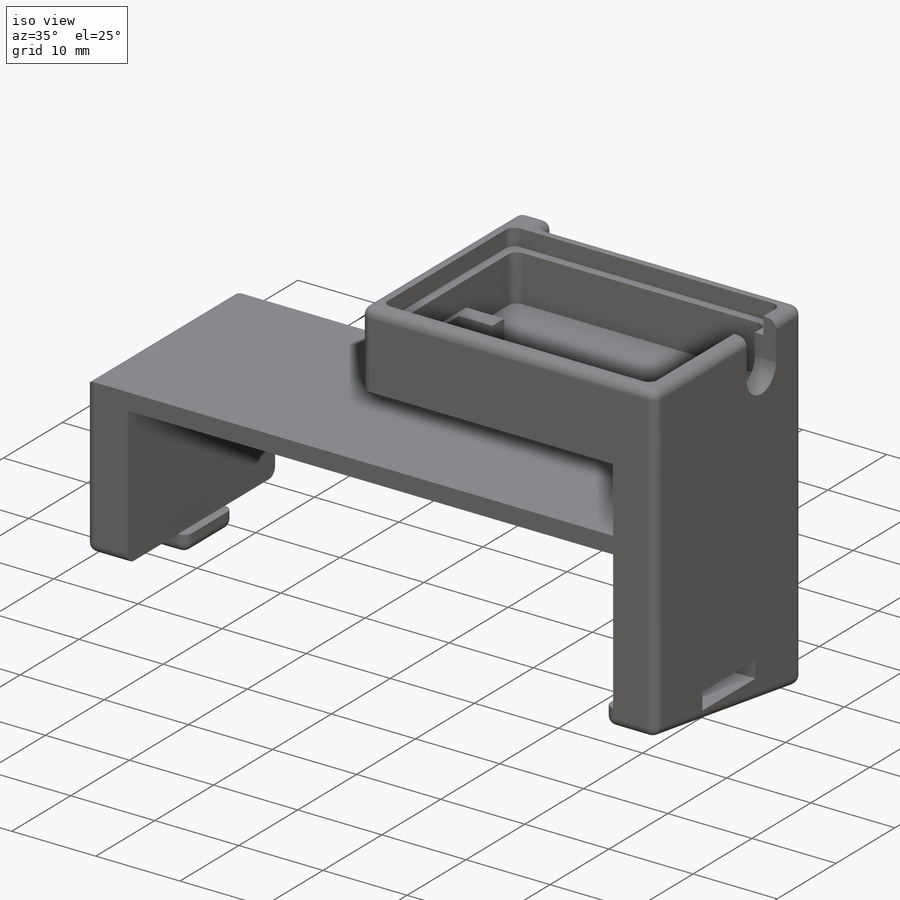
[diagram: iso view]
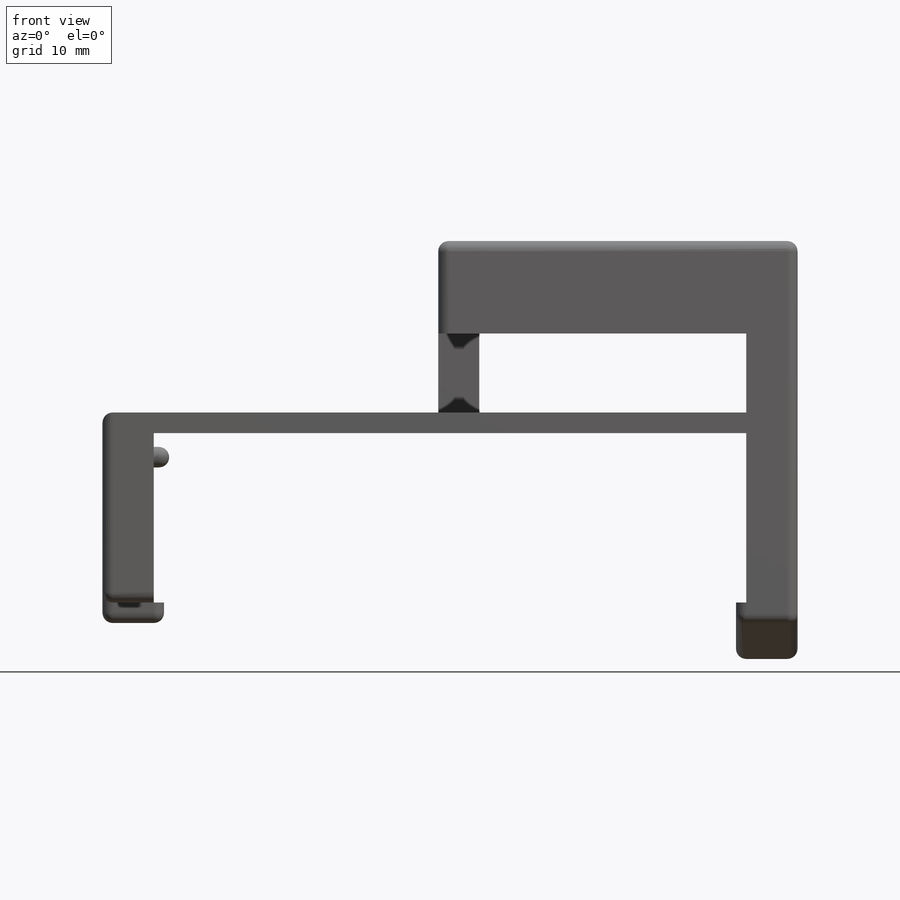
[diagram: front view]
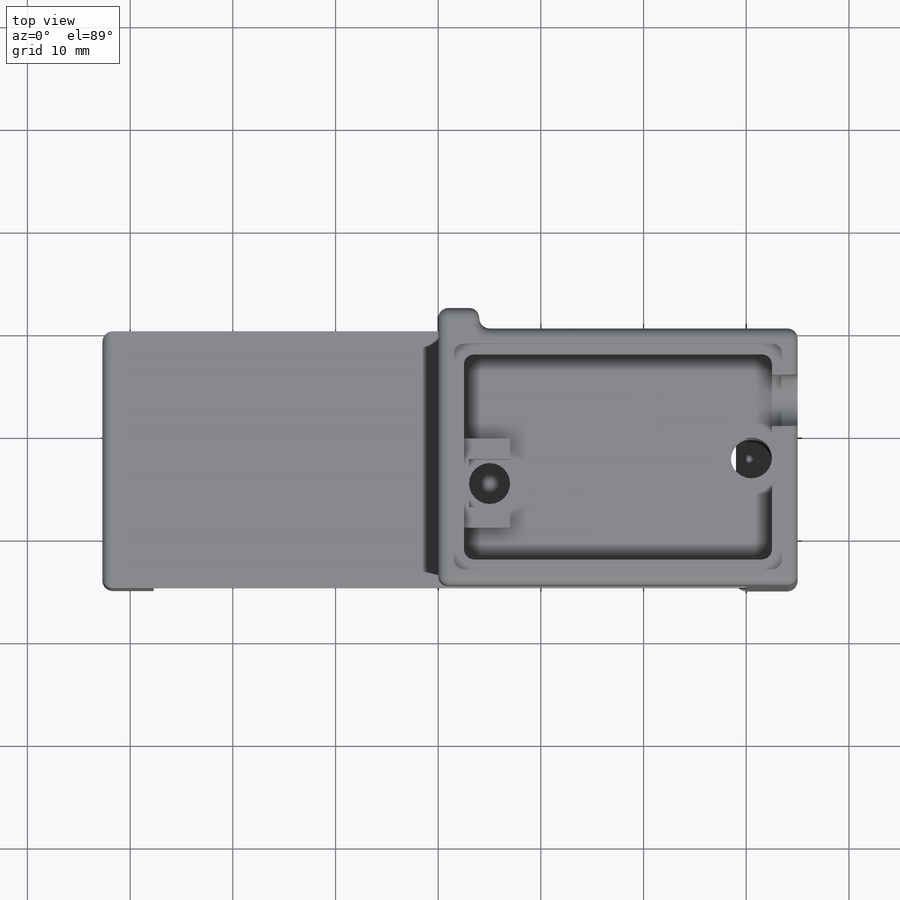
[diagram: top view]
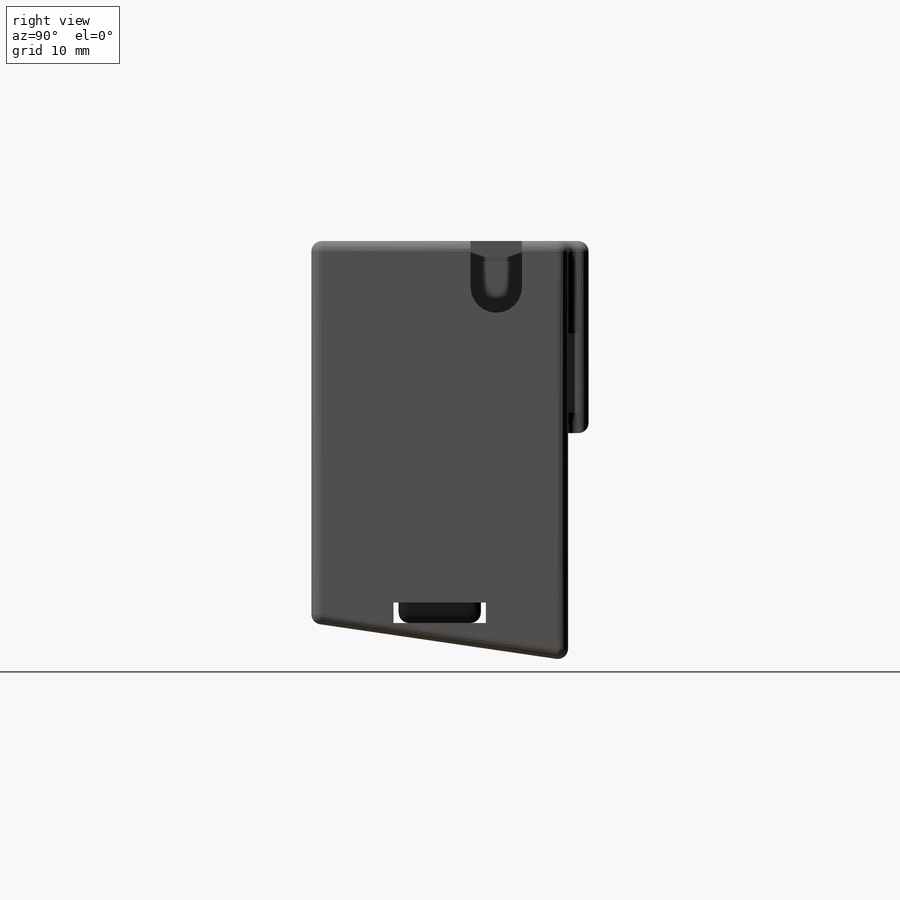
[diagram: right view]
SOLIDWORKS PART (.sldprt)
format: sldprt  version: not decoded by parser v0  size: 817,152 bytes
history: native  units: mm
features: extrude x184, sketch x13, cut_extrude x6, fillet x3, material x1 (+13 scaffold rows collapsed)
feature tree (220):
  scaffold x13  (default folders/planes/origin — collapsed)
  material  "Material <not specified>"
  sketch  "Sketch1"  dims[D1=7.7mm D2=30.0mm D3=35.0mm D4=67.7mm D5=9.0mm D6=18.5mm]
  extrude  "Boss-Extrude1"  Depth=25mm
  sketch  "Sketch2"  dims[D1=57.7mm D2=5.0mm D3=16.5mm]
  cut_extrude  "Cut-Extrude1"  [1 undecoded]
  sketch  "Sketch3"  dims[D1=2.5mm D2=2.5mm D3=2.5mm D4=2.5mm]
  cut_extrude  "Cut-Extrude2"  Depth=7.5mm
  sketch  "Sketch4"  dims[D1=4.0mm D2=0.5mm]
  cut_extrude  "Cut-Extrude3"  [1 undecoded]
  sketch  "Sketch5"  dims[D1=4.0mm D2=25.0mm D3=15.0mm]
  cut_extrude  "Cut-Extrude4"  [1 undecoded]
  sketch  "Sketch6"  dims[D1=8.0mm D2=6.0mm]
  extrude  "Boss-Extrude2"  Depth=2mm
  sketch  "Sketch7"  dims[D2=4.0mm D1=0.0mm flange_len_value=0.0]
  extrude  "Associativity_IDs"  Depth=0 flange_len_value=0
  extrude  "Associativity_IDs"  Depth=0 flange_len_value=0
  extrude  "Associativity_IDs"  Depth=0 flange_len_value=0
  extrude  "Associativity_IDs"  Depth=0 flange_len_value=0
  extrude  "Associativity_IDs"  Depth=0 flange_len_value=0
  extrude  "Associativity_IDs"  Depth=0 flange_len_value=0
  extrude  "Associativity_IDs"  Depth=0 flange_len_value=0
  extrude  "Associativity_IDs"  Depth=0 flange_len_value=0
  extrude  "Associativity_IDs"  Depth=0 flange_len_value=0
  extrude  "Associativity_IDs"  Depth=0 flange_len_value=0
  extrude  "Associativity_IDs"  Depth=0 flange_len_value=0
  extrude  "Associativity_IDs"  Depth=0 flange_len_value=0
  extrude  "Associativity_IDs"  Depth=0 flange_len_value=0
  extrude  "Associativity_IDs"  Depth=0 flange_len_value=0
  extrude  "Associativity_IDs"  Depth=0 flange_len_value=0
  extrude  "Associativity_IDs"  Depth=0 flange_len_value=0
  extrude  "Associativity_IDs"  Depth=0 flange_len_value=0
  extrude  "Associativity_IDs"  Depth=0 flange_len_value=0
  extrude  "Associativity_IDs"  Depth=0 flange_len_value=0
  extrude  "Associativity_IDs"  Depth=0 flange_len_value=0
  extrude  "Associativity_IDs"  Depth=0 flange_len_value=0
  extrude  "Associativity_IDs"  Depth=0 flange_len_value=0
  extrude  "Associativity_IDs"  Depth=0 flange_len_value=0
  extrude  "Associativity_IDs"  Depth=0 flange_len_value=0
  extrude  "Associativity_IDs"  Depth=0 flange_len_value=0
  extrude  "Associativity_IDs"  Depth=0 flange_len_value=0
  extrude  "Associativity_IDs"  Depth=0 flange_len_value=0
  extrude  "Associativity_IDs"  Depth=0 flange_len_value=0
  extrude  "Associativity_IDs"  Depth=0 flange_len_value=0
  extrude  "Associativity_IDs"  Depth=0 flange_len_value=0
  extrude  "Associativity_IDs"  Depth=0 flange_len_value=0
  extrude  "Associativity_IDs"  Depth=0 flange_len_value=0
  extrude  "Associativity_IDs"  Depth=0 flange_len_value=0
  extrude  "Associativity_IDs"  Depth=0 flange_len_value=0
  extrude  "Associativity_IDs"  Depth=0 flange_len_value=0
  extrude  "Associativity_IDs"  Depth=0 flange_len_value=0
  extrude  "Associativity_IDs"  Depth=0 flange_len_value=0
  extrude  "Associativity_IDs"  Depth=0 flange_len_value=0
  extrude  "Associativity_IDs"  Depth=0 flange_len_value=0
  extrude  "Associativity_IDs"  Depth=0 flange_len_value=0
  extrude  "Associativity_IDs"  Depth=0 flange_len_value=0
  sketch  "Sketch8"  dims[c1.D1=25.0mm c2.D1=~8.330537deg c2.D2=~3.660714mm c3.D1=3.66mm c3.D2=25.0mm c4.D2=~8.328934deg]
  extrude  "Boss-Extrude4"  [1 undecoded]
  extrude  "Associativity_IDs"  Depth=0 flange_len_value=0
  extrude  "Associativity_IDs"  Depth=0 flange_len_value=0
  sketch  "Sketch9"  dims[D1=1.0mm D2=1.0mm D3=1.0mm D4=1.0mm]
  cut_extrude  "Cut-Extrude5"  Depth=2mm
  fillet  "Fillet1"  Radius=1mm
  sketch  "Sketch10"  dims[D2=2.0mm D3=2.0mm D1=3.0mm D4=2.35mm]
  extrude  "Boss-Extrude5"  Depth=1.5mm
  fillet  "Fillet3"  Radius=1mm
  extrude  "Associativity_IDs"  Depth=0 flange_len_value=0
  extrude  "Associativity_IDs"  Depth=0 flange_len_value=0
  extrude  "Associativity_IDs"  Depth=0 flange_len_value=0
  extrude  "Associativity_IDs"  Depth=0 flange_len_value=0
  extrude  "Associativity_IDs"  Depth=0 flange_len_value=0
  extrude  "Associativity_IDs"  Depth=0 flange_len_value=0
  extrude  "Associativity_IDs"  Depth=0 flange_len_value=0
  extrude  "Associativity_IDs"  Depth=0 flange_len_value=0
  extrude  "Associativity_IDs"  Depth=0 flange_len_value=0
  extrude  "Associativity_IDs"  Depth=0 flange_len_value=0
  extrude  "Associativity_IDs"  Depth=0 flange_len_value=0
  extrude  "Associativity_IDs"  Depth=0 flange_len_value=0
  extrude  "Associativity_IDs"  Depth=0 flange_len_value=0
  extrude  "Associativity_IDs"  Depth=0 flange_len_value=0
  extrude  "Associativity_IDs"  Depth=0 flange_len_value=0
  extrude  "Associativity_IDs"  Depth=0 flange_len_value=0
  extrude  "Associativity_IDs"  Depth=0 flange_len_value=0
  extrude  "Associativity_IDs"  Depth=0 flange_len_value=0
  extrude  "Associativity_IDs"  Depth=0 flange_len_value=0
  extrude  "Associativity_IDs"  Depth=0 flange_len_value=0
  extrude  "Associativity_IDs"  Depth=0 flange_len_value=0
  extrude  "Associativity_IDs"  Depth=0 flange_len_value=0
  extrude  "Associativity_IDs"  Depth=0 flange_len_value=0
  extrude  "Associativity_IDs"  Depth=0 flange_len_value=0
  extrude  "Associativity_IDs"  Depth=0 flange_len_value=0
  extrude  "Associativity_IDs"  Depth=0 flange_len_value=0
  extrude  "Associativity_IDs"  Depth=0 flange_len_value=0
  extrude  "Associativity_IDs"  Depth=0 flange_len_value=0
  extrude  "Associativity_IDs"  Depth=0 flange_len_value=0
  extrude  "Associativity_IDs"  Depth=0 flange_len_value=0
  extrude  "Associativity_IDs"  Depth=0 flange_len_value=0
  extrude  "Associativity_IDs"  Depth=0 flange_len_value=0
  extrude  "Associativity_IDs"  Depth=0 flange_len_value=0
  extrude  "Associativity_IDs"  Depth=0 flange_len_value=0
  extrude  "Associativity_IDs"  Depth=0 flange_len_value=0
  extrude  "Associativity_IDs"  Depth=0 flange_len_value=0
  extrude  "Associativity_IDs"  Depth=0 flange_len_value=0
  extrude  "Associativity_IDs"  Depth=0 flange_len_value=0
  extrude  "Associativity_IDs"  Depth=0 flange_len_value=0
  extrude  "Associativity_IDs"  Depth=0 flange_len_value=0
  extrude  "Associativity_IDs"  Depth=0 flange_len_value=0
  extrude  "Associativity_IDs"  Depth=0 flange_len_value=0
  extrude  "Associativity_IDs"  Depth=0 flange_len_value=0
  extrude  "Associativity_IDs"  Depth=0 flange_len_value=0
  extrude  "Associativity_IDs"  Depth=0 flange_len_value=0
  extrude  "Associativity_IDs"  Depth=0 flange_len_value=0
  extrude  "Associativity_IDs"  Depth=0 flange_len_value=0
  extrude  "Associativity_IDs"  Depth=0 flange_len_value=0
  extrude  "Associativity_IDs"  Depth=0 flange_len_value=0
  extrude  "Associativity_IDs"  Depth=0 flange_len_value=0
  extrude  "Associativity_IDs"  Depth=0 flange_len_value=0
  extrude  "Associativity_IDs"  Depth=0 flange_len_value=0
  extrude  "Associativity_IDs"  Depth=0 flange_len_value=0
  extrude  "Associativity_IDs"  Depth=0 flange_len_value=0
  extrude  "Associativity_IDs"  Depth=0 flange_len_value=0
  extrude  "Associativity_IDs"  Depth=0 flange_len_value=0
  extrude  "Associativity_IDs"  Depth=0 flange_len_value=0
  extrude  "Associativity_IDs"  Depth=0 flange_len_value=0
  extrude  "Associativity_IDs"  Depth=0 flange_len_value=0
  extrude  "Associativity_IDs"  Depth=0 flange_len_value=0
  extrude  "Associativity_IDs"  Depth=0 flange_len_value=0
  extrude  "Associativity_IDs"  Depth=0 flange_len_value=0
  extrude  "Associativity_IDs"  Depth=0 flange_len_value=0
  extrude  "Associativity_IDs"  Depth=0 flange_len_value=0
  extrude  "Associativity_IDs"  Depth=0 flange_len_value=0
  extrude  "Boss-Extrude6"  Depth=2mm
  fillet  "Fillet4"  Radius=1mm
  extrude  "Associativity_IDs"  Depth=0 flange_len_value=0
  extrude  "Associativity_IDs"  Depth=0 flange_len_value=0
  extrude  "Associativity_IDs"  Depth=0 flange_len_value=0
  extrude  "Associativity_IDs"  Depth=0 flange_len_value=0
  extrude  "Associativity_IDs"  Depth=0 flange_len_value=0
  extrude  "Associativity_IDs"  Depth=0 flange_len_value=0
  extrude  "Associativity_IDs"  Depth=0 flange_len_value=0
  extrude  "Associativity_IDs"  Depth=0 flange_len_value=0
  extrude  "Associativity_IDs"  Depth=0 flange_len_value=0
  extrude  "Associativity_IDs"  Depth=0 flange_len_value=0
  extrude  "Associativity_IDs"  Depth=0 flange_len_value=0
  extrude  "Associativity_IDs"  Depth=0 flange_len_value=0
  extrude  "Associativity_IDs"  Depth=0 flange_len_value=0
  extrude  "Associativity_IDs"  Depth=0 flange_len_value=0
  extrude  "Associativity_IDs"  Depth=0 flange_len_value=0
  extrude  "Associativity_IDs"  Depth=0 flange_len_value=0
  extrude  "Associativity_IDs"  Depth=0 flange_len_value=0
  extrude  "Associativity_IDs"  Depth=0 flange_len_value=0
  extrude  "Associativity_IDs"  Depth=0 flange_len_value=0
  extrude  "Associativity_IDs"  Depth=0 flange_len_value=0
  extrude  "Associativity_IDs"  Depth=0 flange_len_value=0
  extrude  "Associativity_IDs"  Depth=0 flange_len_value=0
  extrude  "Associativity_IDs"  Depth=0 flange_len_value=0
  extrude  "Associativity_IDs"  Depth=0 flange_len_value=0
  extrude  "Associativity_IDs"  Depth=0 flange_len_value=0
  extrude  "Associativity_IDs"  Depth=0 flange_len_value=0
  extrude  "Associativity_IDs"  Depth=0 flange_len_value=0
  extrude  "Associativity_IDs"  Depth=0 flange_len_value=0
  extrude  "Associativity_IDs"  Depth=0 flange_len_value=0
  extrude  "Associativity_IDs"  Depth=0 flange_len_value=0
  extrude  "Associativity_IDs"  Depth=0 flange_len_value=0
  extrude  "Associativity_IDs"  Depth=0 flange_len_value=0
  extrude  "Associativity_IDs"  Depth=0 flange_len_value=0
  extrude  "Associativity_IDs"  Depth=0 flange_len_value=0
  extrude  "Associativity_IDs"  Depth=0 flange_len_value=0
  extrude  "Associativity_IDs"  Depth=0 flange_len_value=0
  extrude  "Associativity_IDs"  Depth=0 flange_len_value=0
  extrude  "Associativity_IDs"  Depth=0 flange_len_value=0
  extrude  "Associativity_IDs"  Depth=0 flange_len_value=0
  extrude  "Associativity_IDs"  Depth=0 flange_len_value=0
  extrude  "Associativity_IDs"  Depth=0 flange_len_value=0
  extrude  "Associativity_IDs"  Depth=0 flange_len_value=0
  extrude  "Associativity_IDs"  Depth=0 flange_len_value=0
  extrude  "Associativity_IDs"  Depth=0 flange_len_value=0
  extrude  "Associativity_IDs"  Depth=0 flange_len_value=0
  extrude  "Associativity_IDs"  Depth=0 flange_len_value=0
  extrude  "Associativity_IDs"  Depth=0 flange_len_value=0
  extrude  "Associativity_IDs"  Depth=0 flange_len_value=0
  extrude  "Associativity_IDs"  Depth=0 flange_len_value=0
  extrude  "Associativity_IDs"  Depth=0 flange_len_value=0
  extrude  "Associativity_IDs"  Depth=0 flange_len_value=0
  extrude  "Associativity_IDs"  Depth=0 flange_len_value=0
  extrude  "Associativity_IDs"  Depth=0 flange_len_value=0
  extrude  "Associativity_IDs"  Depth=0 flange_len_value=0
  extrude  "Associativity_IDs"  Depth=0 flange_len_value=0
  extrude  "Associativity_IDs"  Depth=0 flange_len_value=0
  sketch  "Sketch11"  dims[D1=2.0mm D2=2.0mm D3=4.68mm D4=4.5mm]
  extrude  "Boss-Extrude7"  Depth=2.5mm
  sketch  "Sketch12"  dims[D1=0.5mm]
  extrude  "Boss-Extrude8"  Depth=2.5mm
  sketch  "Sketch13"  dims[D1=2.5mm D2=4.5mm D3=7.0mm]
  cut_extrude  "Cut-Extrude6"  [1 undecoded]
  extrude  "Associativity_IDs"  Depth=0 flange_len_value=0
  extrude  "Associativity_IDs"  Depth=0 flange_len_value=0
  extrude  "Associativity_IDs"  Depth=0 flange_len_value=0
  extrude  "Associativity_IDs"  Depth=0 flange_len_value=0
  extrude  "Associativity_IDs"  Depth=0 flange_len_value=0
  extrude  "Associativity_IDs"  Depth=0 flange_len_value=0
  extrude  "Associativity_IDs"  Depth=0 flange_len_value=0
  extrude  "Associativity_IDs"  Depth=0 flange_len_value=0
  extrude  "Associativity_IDs"  Depth=0 flange_len_value=0
  extrude  "Associativity_IDs"  Depth=0 flange_len_value=0
  extrude  "Associativity_IDs"  Depth=0 flange_len_value=0
  extrude  "Associativity_IDs"  Depth=0 flange_len_value=0
  extrude  "Associativity_IDs"  Depth=0 flange_len_value=0
decode coverage: 201 of 206 modeling features carry decoded parameters
note: ~ marks probable driven/reference dimensions
note: 5 parameter values undecoded
summary: no parameter record found for 5 features
note: suppression state not decoded; provenance and decode notes live in map.json
